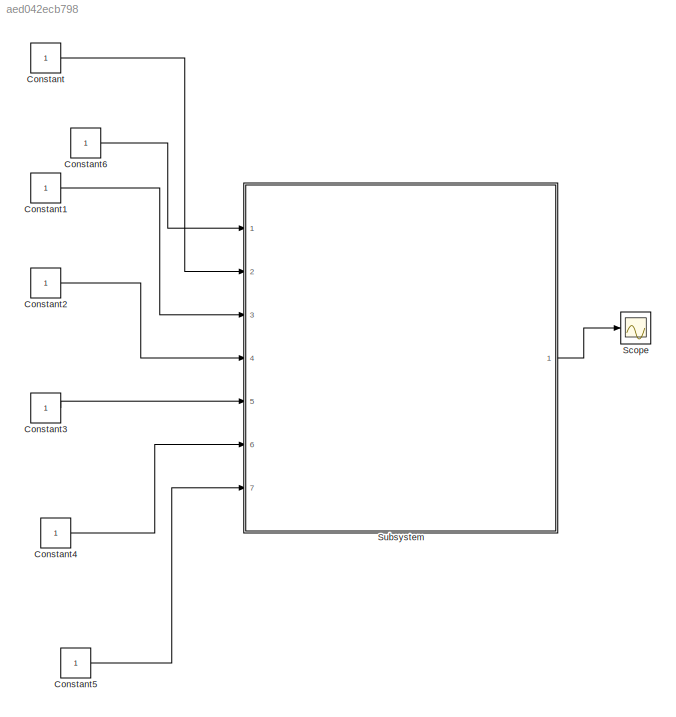
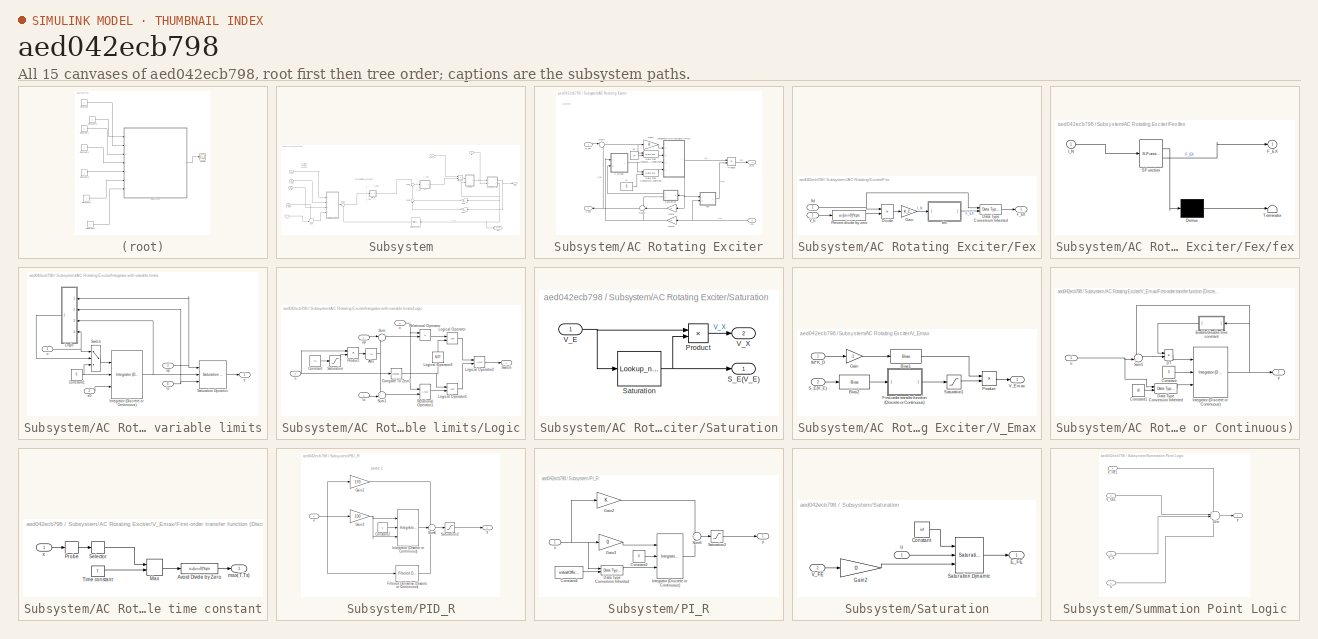
[diagram: thumbnail index - all 15 canvases of the model, root first then tree order]
MODEL slx_aed042ecb798
KIND model
CONFIG AbsTol = auto
CONFIG EnableMultiTasking = off
CONFIG FixedStep = auto
CONFIG MaxStep = auto
CONFIG MinStep = auto
CONFIG RelTol = 1e-3
CONFIG SampleTimeConstraint = Unconstrained
CONFIG SolverName = VariableStepAuto
CONFIG StartTime = 0.0
CONFIG StopTime = 1
BLOCK [Constant] Constant
BLOCK [Constant] Constant1
BLOCK [Constant] Constant2
BLOCK [Constant] Constant3
BLOCK [Constant] Constant4
BLOCK [Constant] Constant5
BLOCK [Constant] Constant6
BLOCK [Scope] Scope
  Floating = off
  NumInputPorts = 1
  Ports = [1]
  ScopeSpecificationString = Simulink.scopes.TimeScopeBlockCfg('CurrentConfiguration', extmgr.ConfigurationSet(extmgr.Configuration('Core','General UI',true),extmgr.Configuration('Core','Source UI',true),extmgr.Configuration('Sources','WiredSimulink',true),extmgr.Configuration('Visuals','Time Domain',true),extmgr.Configuration('Tools','Plot Navigation',true),extmgr.Configuration('Tools','Measurements',true,'Version','2021b'))...<+19ch>
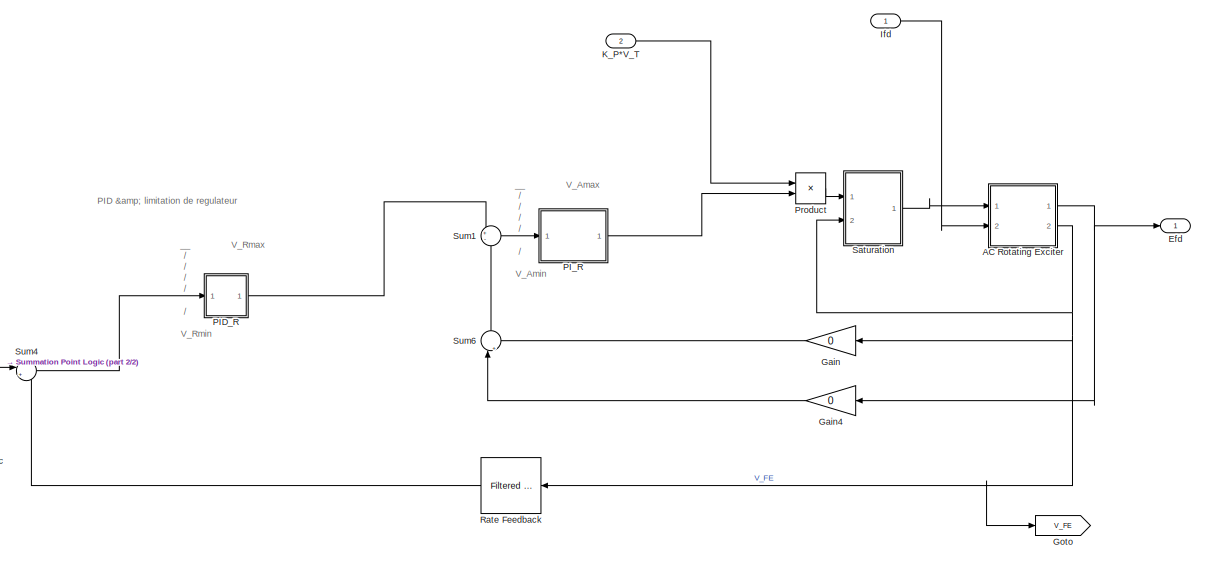
[diagram: Subsystem - part 1/2, most of the canvas]
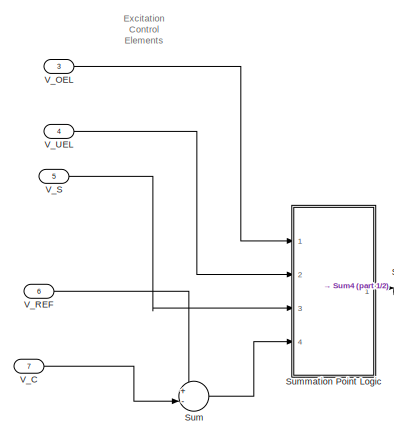
[diagram: Subsystem - part 2/2, left side, full height]
BLOCK [SubSystem] Subsystem
  Ports = [7, 1]
  RequestExecContextInheritance = off
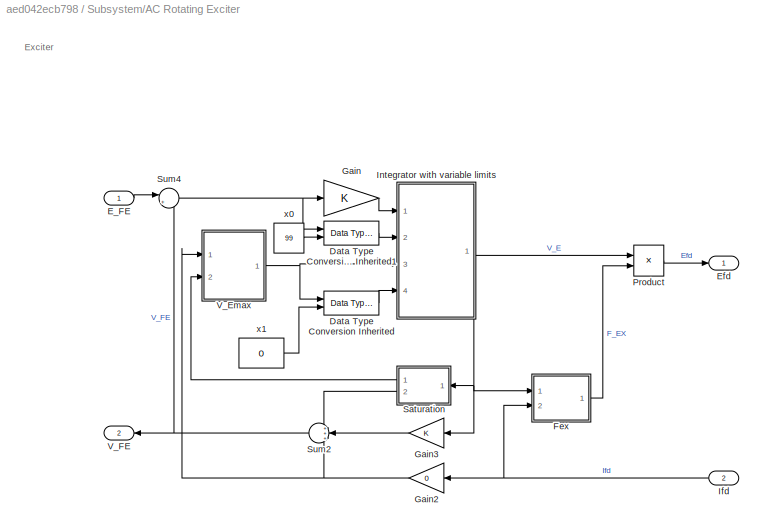
BLOCK [SubSystem] Subsystem/AC Rotating Exciter
  Ports = [2, 2]
  RequestExecContextInheritance = off
BLOCK [Reference] Subsystem/AC Rotating Exciter/Data Type Conversion Inherited  REF=simulink/Signal
Attributes/Data Type
Conversion
Inherited
  Ports = [2, 1]
  SourceBlock = simulink/Signal\nAttributes/Data Type\nConversion\nInherited
  SourceProductBaseCode = SL
  SourceType = Conversion Inherited
BLOCK [Reference] Subsystem/AC Rotating Exciter/Data Type Conversion Inherited1  REF=simulink/Signal
Attributes/Data Type
Conversion
Inherited
  Ports = [2, 1]
  SourceBlock = simulink/Signal\nAttributes/Data Type\nConversion\nInherited
  SourceProductBaseCode = SL
  SourceType = Conversion Inherited
BLOCK [Inport] Subsystem/AC Rotating Exciter/E_FE
BLOCK [Outport] Subsystem/AC Rotating Exciter/Efd
  VectorParamsAs1DForOutWhenUnconnected = off
BLOCK [SubSystem] Subsystem/AC Rotating Exciter/Fex
  Ports = [2, 1]
  RequestExecContextInheritance = off
BLOCK [Reference] Subsystem/AC Rotating Exciter/Fex/Data Type Conversion Inherited  REF=simulink/Signal
Attributes/Data Type
Conversion
Inherited
  Ports = [2, 1]
  SourceBlock = simulink/Signal\nAttributes/Data Type\nConversion\nInherited
  SourceProductBaseCode = SL
  SourceType = Conversion Inherited
BLOCK [Product] Subsystem/AC Rotating Exciter/Fex/Divide
  Inputs = */
  Ports = [2, 1]
BLOCK [Outport] Subsystem/AC Rotating Exciter/Fex/F_EX
  VectorParamsAs1DForOutWhenUnconnected = off
BLOCK [Gain] Subsystem/AC Rotating Exciter/Fex/Gain
  Gain = K_C
  OutDataTypeStr = double
BLOCK [Inport] Subsystem/AC Rotating Exciter/Fex/Ifd
  NameLocation = top
  Port = 2
BLOCK [Fcn] Subsystem/AC Rotating Exciter/Fex/Prevent divide by zero
  Expr = u+(u==0)*eps
BLOCK [Inport] Subsystem/AC Rotating Exciter/Fex/V_E
BLOCK [SubSystem] Subsystem/AC Rotating Exciter/Fex/fex
  ErrorFcn = Stateflow.Translate.translate
  PermitHierarchicalResolution = ExplicitOnly
  Ports = [1, 1]
  RequestExecContextInheritance = off
  SFBlockType = MATLAB Function
  TreatAsAtomicUnit = on
BLOCK [Demux] Subsystem/AC Rotating Exciter/Fex/fex/ Demux 
  Outputs = 1
  Ports = [1, 1]
BLOCK [S-Function] Subsystem/AC Rotating Exciter/Fex/fex/ SFunction 
  EnableBusSupport = on
  FunctionName = sf_sfun
  PortCounts = [1 2]
  Ports = [1, 2]
  SFcnIsStateOwnerBlock = off
  SFunctionDeploymentMode = off
  Tag = Stateflow S-Function 5
BLOCK [Terminator] Subsystem/AC Rotating Exciter/Fex/fex/ Terminator 
BLOCK [Outport] Subsystem/AC Rotating Exciter/Fex/fex/F_EX
  VectorParamsAs1DForOutWhenUnconnected = off
BLOCK [Inport] Subsystem/AC Rotating Exciter/Fex/fex/I_N
BLOCK [Gain] Subsystem/AC Rotating Exciter/Gain
  OutDataTypeStr = Inherit: Same as input
  ParamDataTypeStr = Inherit: Same as input
  SaturateOnIntegerOverflow = on
BLOCK [Gain] Subsystem/AC Rotating Exciter/Gain2
  Gain = 0
  OutDataTypeStr = Inherit: Same as input
  ParamDataTypeStr = Inherit: Same as input
  SaturateOnIntegerOverflow = on
BLOCK [Gain] Subsystem/AC Rotating Exciter/Gain3
  OutDataTypeStr = Inherit: Same as input
  ParamDataTypeStr = Inherit: Same as input
  SaturateOnIntegerOverflow = on
BLOCK [Inport] Subsystem/AC Rotating Exciter/Ifd
  Port = 2
BLOCK [SubSystem] Subsystem/AC Rotating Exciter/Integrator with variable limits
  Ports = [4, 1]
  RequestExecContextInheritance = off
BLOCK [Constant] Subsystem/AC Rotating Exciter/Integrator with variable limits/Constant1
  Value = 0
BLOCK [Reference] Subsystem/AC Rotating Exciter/Integrator with variable limits/Integrator (Discrete or Continuous)  REF=eeGeneralControl/Integrator
(Discrete or Continuous)
  Ports = [3, 1]
  SourceBlock = eeGeneralControl/Integrator\n(Discrete or Continuous)
  SourceProductBaseCode = PS
  SourceType = Integrator (Discrete or Continuous)
BLOCK [SubSystem] Subsystem/AC Rotating Exciter/Integrator with variable limits/Logic
  Ports = [4, 1]
  RequestExecContextInheritance = off
BLOCK [Abs] Subsystem/AC Rotating Exciter/Integrator with variable limits/Logic/Abs
  SaturateOnIntegerOverflow = off
BLOCK [Reference] Subsystem/AC Rotating Exciter/Integrator with variable limits/Logic/Compare To Zero1  REF=simulink/Logic and Bit
Operations/Compare
To Zero
  Ports = [1, 1]
  SourceBlock = simulink/Logic and Bit\nOperations/Compare\nTo Zero
  SourceProductBaseCode = SL
  SourceType = Compare To Zero
BLOCK [Constant] Subsystem/AC Rotating Exciter/Integrator with variable limits/Logic/Constant
  Value = Ts
BLOCK [Logic] Subsystem/AC Rotating Exciter/Integrator with variable limits/Logic/Logical Operator
  AllPortsSameDT = off
  Operator = OR
  OutDataTypeStr = boolean
  Ports = [2, 1]
BLOCK [Logic] Subsystem/AC Rotating Exciter/Integrator with variable limits/Logic/Logical Operator1
  AllPortsSameDT = off
  Operator = OR
  OutDataTypeStr = boolean
  Ports = [2, 1]
BLOCK [Logic] Subsystem/AC Rotating Exciter/Integrator with variable limits/Logic/Logical Operator2
  AllPortsSameDT = off
  OutDataTypeStr = boolean
  Ports = [2, 1]
BLOCK [Logic] Subsystem/AC Rotating Exciter/Integrator with variable limits/Logic/Logical Operator3
  AllPortsSameDT = off
  Operator = NOT
  OutDataTypeStr = boolean
  Ports = [1, 1]
BLOCK [Product] Subsystem/AC Rotating Exciter/Integrator with variable limits/Logic/Product
  OutDataTypeStr = Inherit: Same as first input
  Ports = [2, 1]
BLOCK [RelationalOperator] Subsystem/AC Rotating Exciter/Integrator with variable limits/Logic/Relational Operator
  InputSameDT = off
  Operator = <=
  OutDataTypeStr = boolean
  Ports = [2, 1]
BLOCK [RelationalOperator] Subsystem/AC Rotating Exciter/Integrator with variable limits/Logic/Relational Operator1
  InputSameDT = off
  OutDataTypeStr = boolean
  Ports = [2, 1]
BLOCK [Saturate] Subsystem/AC Rotating Exciter/Integrator with variable limits/Logic/Saturation
  LowerLimit = 0
  UpperLimit = inf
BLOCK [Sum] Subsystem/AC Rotating Exciter/Integrator with variable limits/Logic/Sum
  Inputs = |+-
  Ports = [2, 1]
BLOCK [Sum] Subsystem/AC Rotating Exciter/Integrator with variable limits/Logic/Sum1
  Inputs = ++|
  Ports = [2, 1]
BLOCK [Outport] Subsystem/AC Rotating Exciter/Integrator with variable limits/Logic/Switch
BLOCK [Inport] Subsystem/AC Rotating Exciter/Integrator with variable limits/Logic/lo
  Port = 2
BLOCK [Inport] Subsystem/AC Rotating Exciter/Integrator with variable limits/Logic/u
  Port = 4
BLOCK [Inport] Subsystem/AC Rotating Exciter/Integrator with variable limits/Logic/up
BLOCK [Inport] Subsystem/AC Rotating Exciter/Integrator with variable limits/Logic/x
  Port = 3
BLOCK [Reference] Subsystem/AC Rotating Exciter/Integrator with variable limits/Saturation Dynamic  REF=simulink/Discontinuities/Saturation
Dynamic
  Ports = [3, 1]
  SourceBlock = simulink/Discontinuities/Saturation\nDynamic
  SourceProductBaseCode = SL
  SourceType = Saturation Dynamic
BLOCK [Switch] Subsystem/AC Rotating Exciter/Integrator with variable limits/Switch
  Criteria = u2 > Threshold
  InputSameDT = off
  OutDataTypeStr = Inherit: Same as first input
  SaturateOnIntegerOverflow = off
BLOCK [Inport] Subsystem/AC Rotating Exciter/Integrator with variable limits/lo
  Port = 4
BLOCK [Inport] Subsystem/AC Rotating Exciter/Integrator with variable limits/u
BLOCK [Inport] Subsystem/AC Rotating Exciter/Integrator with variable limits/up
  Port = 3
BLOCK [Inport] Subsystem/AC Rotating Exciter/Integrator with variable limits/x0
  Port = 2
BLOCK [Outport] Subsystem/AC Rotating Exciter/Integrator with variable limits/y
BLOCK [Product] Subsystem/AC Rotating Exciter/Product
  OutDataTypeStr = Inherit: Same as first input
  Ports = [2, 1]
BLOCK [SubSystem] Subsystem/AC Rotating Exciter/Saturation
  Ports = [1, 2]
  RequestExecContextInheritance = off
BLOCK [Product] Subsystem/AC Rotating Exciter/Saturation/Product
  InputSameDT = on
  OutDataTypeStr = Inherit: Same as first input
  Ports = [2, 1]
  RndMeth = Zero
  SaturateOnIntegerOverflow = on
BLOCK [Outport] Subsystem/AC Rotating Exciter/Saturation/S_E(V_E)
  VectorParamsAs1DForOutWhenUnconnected = off
BLOCK [Lookup_n-D] Subsystem/AC Rotating Exciter/Saturation/Saturation
  BreakpointsForDimension1 = [0 E_2 E_1]
  InputPortMap = u0
  InternalRulePriority = Speed
  NumberOfTableDimensions = 1
  Ports = [1, 1]
  RndMeth = Simplest
  Table = [0 S_E_E2 S_E_E1]
BLOCK [Inport] Subsystem/AC Rotating Exciter/Saturation/V_E
BLOCK [Outport] Subsystem/AC Rotating Exciter/Saturation/V_X
  Port = 2
  VectorParamsAs1DForOutWhenUnconnected = off
BLOCK [Sum] Subsystem/AC Rotating Exciter/Sum2
  InputSameDT = on
  Inputs = +++
  NameLocation = top
  OutDataTypeStr = Inherit: Same as first input
  Ports = [3, 1]
  SaturateOnIntegerOverflow = on
BLOCK [Sum] Subsystem/AC Rotating Exciter/Sum4
  InputSameDT = on
  Inputs = |+-
  OutDataTypeStr = Inherit: Same as first input
  Ports = [2, 1]
  SaturateOnIntegerOverflow = on
BLOCK [SubSystem] Subsystem/AC Rotating Exciter/V_Emax
  Ports = [2, 1]
  RequestExecContextInheritance = off
BLOCK [Bias] Subsystem/AC Rotating Exciter/V_Emax/Bias1
  Bias = 99
  SaturateOnIntegerOverflow = off
BLOCK [Bias] Subsystem/AC Rotating Exciter/V_Emax/Bias2
  Bias = 1
  SaturateOnIntegerOverflow = off
BLOCK [SubSystem] Subsystem/AC Rotating Exciter/V_Emax/First-order transfer function (Discrete or Continuous)
  Ports = [1, 1]
  RequestExecContextInheritance = off
BLOCK [Product] Subsystem/AC Rotating Exciter/V_Emax/First-order transfer function (Discrete or Continuous)/1//T
  Inputs = /*
  Ports = [2, 1]
BLOCK [Constant] Subsystem/AC Rotating Exciter/V_Emax/First-order transfer function (Discrete or Continuous)/Constant
  Value = 0
BLOCK [Constant] Subsystem/AC Rotating Exciter/V_Emax/First-order transfer function (Discrete or Continuous)/Constant1
  Value = x0
BLOCK [Reference] Subsystem/AC Rotating Exciter/V_Emax/First-order transfer function (Discrete or Continuous)/Data Type Conversion Inherited  REF=simulink/Signal
Attributes/Data Type
Conversion
Inherited
  Ports = [2, 1]
  SourceBlock = simulink/Signal\nAttributes/Data Type\nConversion\nInherited
  SourceProductBaseCode = SL
  SourceType = Conversion Inherited
BLOCK [SubSystem] Subsystem/AC Rotating Exciter/V_Emax/First-order transfer function (Discrete or Continuous)/Enable//disable time constant
  Ports = [1, 1]
  RequestExecContextInheritance = off
BLOCK [Fcn] Subsystem/AC Rotating Exciter/V_Emax/First-order transfer function (Discrete or Continuous)/Enable//disable time constant/Avoid Divide by Zero
  Expr = u+(u==0)*eps
BLOCK [MinMax] Subsystem/AC Rotating Exciter/V_Emax/First-order transfer function (Discrete or Continuous)/Enable//disable time constant/Max
  Function = max
  Inputs = 2
  OutDataTypeStr = Inherit: Same as first input
  Ports = [2, 1]
BLOCK [Probe] Subsystem/AC Rotating Exciter/V_Emax/First-order transfer function (Discrete or Continuous)/Enable//disable time constant/Probe
  Ports = [1, 1]
  ProbeComplexSignal = off
  ProbeSampleTimeDataType = Same as input
  ProbeWidth = off
BLOCK [Selector] Subsystem/AC Rotating Exciter/V_Emax/First-order transfer function (Discrete or Continuous)/Enable//disable time constant/Selector
  IndexOptions = Index vector (dialog)
  Indices = 1
  InputPortWidth = 2
  OutputSizes = 1
  Ports = [1, 1]
BLOCK [Constant] Subsystem/AC Rotating Exciter/V_Emax/First-order transfer function (Discrete or Continuous)/Enable//disable time constant/Time constant
  SampleTime = Ts
  Value = T
BLOCK [Outport] Subsystem/AC Rotating Exciter/V_Emax/First-order transfer function (Discrete or Continuous)/Enable//disable time constant/max(T,Ts)
  VectorParamsAs1DForOutWhenUnconnected = off
BLOCK [Inport] Subsystem/AC Rotating Exciter/V_Emax/First-order transfer function (Discrete or Continuous)/Enable//disable time constant/x
BLOCK [Reference] Subsystem/AC Rotating Exciter/V_Emax/First-order transfer function (Discrete or Continuous)/Integrator (Discrete or Continuous)  REF=eeGeneralControl/Integrator
(Discrete or Continuous)
  Ports = [3, 1]
  SourceBlock = eeGeneralControl/Integrator\n(Discrete or Continuous)
  SourceProductBaseCode = PS
  SourceType = Integrator (Discrete or Continuous)
BLOCK [Sum] Subsystem/AC Rotating Exciter/V_Emax/First-order transfer function (Discrete or Continuous)/Sum1
  Inputs = -+|
  Ports = [2, 1]
BLOCK [Inport] Subsystem/AC Rotating Exciter/V_Emax/First-order transfer function (Discrete or Continuous)/u
BLOCK [Outport] Subsystem/AC Rotating Exciter/V_Emax/First-order transfer function (Discrete or Continuous)/y
  VectorParamsAs1DForOutWhenUnconnected = off
BLOCK [Gain] Subsystem/AC Rotating Exciter/V_Emax/Gain
  Gain = -1
BLOCK [Inport] Subsystem/AC Rotating Exciter/V_Emax/Ifd*K_D
BLOCK [Product] Subsystem/AC Rotating Exciter/V_Emax/Product
  Inputs = */
  Ports = [2, 1]
BLOCK [Inport] Subsystem/AC Rotating Exciter/V_Emax/S_E(V_E)
  Port = 2
BLOCK [Saturate] Subsystem/AC Rotating Exciter/V_Emax/Saturation1
  LowerLimit = eps
  UpperLimit = inf
BLOCK [Outport] Subsystem/AC Rotating Exciter/V_Emax/V_Emax
BLOCK [Outport] Subsystem/AC Rotating Exciter/V_FE
  Port = 2
  VectorParamsAs1DForOutWhenUnconnected = off
BLOCK [Constant] Subsystem/AC Rotating Exciter/x0
  Value = 99
BLOCK [Constant] Subsystem/AC Rotating Exciter/x1
  Value = 0
BLOCK [Outport] Subsystem/Efd
BLOCK [Gain] Subsystem/Gain
  Gain = 0
BLOCK [Gain] Subsystem/Gain4
  Gain = 0
BLOCK [Goto] Subsystem/Goto
  GotoTag = V_FE
BLOCK [Inport] Subsystem/Ifd
BLOCK [Inport] Subsystem/K_P*V_T
  Port = 2
BLOCK [SubSystem] Subsystem/PID_R
  Ports = [1, 1]
  RequestExecContextInheritance = off
BLOCK [Constant] Subsystem/PID_R/Constant2
  Value = 0
BLOCK [Reference] Subsystem/PID_R/Filtered Derivative (Discrete or Continuous)  REF=eeGeneralControl/Filtered Derivative
(Discrete or Continuous)
  Ports = [1, 1]
  SourceBlock = eeGeneralControl/Filtered Derivative\n(Discrete or Continuous)
  SourceProductBaseCode = PS
  SourceType = Filtered Derivative (Discrete or Continuous)
BLOCK [Gain] Subsystem/PID_R/Gain2
  Gain = 170
BLOCK [Gain] Subsystem/PID_R/Gain3
  Gain = 130
BLOCK [Reference] Subsystem/PID_R/Integrator (Discrete or Continuous)  REF=eeGeneralControl/Integrator
(Discrete or Continuous)
  Ports = [3, 1]
  SourceBlock = eeGeneralControl/Integrator\n(Discrete or Continuous)
  SourceProductBaseCode = PS
  SourceType = Integrator (Discrete or Continuous)
BLOCK [Saturate] Subsystem/PID_R/Saturation2
  LowerLimit = 0
  UpperLimit = 10
BLOCK [Sum] Subsystem/PID_R/Sum6
  Inputs = +++
  Ports = [3, 1]
BLOCK [Inport] Subsystem/PID_R/u
BLOCK [Outport] Subsystem/PID_R/y
BLOCK [SubSystem] Subsystem/PI_R
  Ports = [1, 1]
  RequestExecContextInheritance = off
BLOCK [Constant] Subsystem/PI_R/Constant2
  Value = 0
BLOCK [Constant] Subsystem/PI_R/Constant4
  Commented = on
  Value = initialOffset2
BLOCK [Reference] Subsystem/PI_R/Data Type Conversion Inherited  REF=simulink/Signal
Attributes/Data Type
Conversion
Inherited
  Ports = [2, 1]
  SourceBlock = simulink/Signal\nAttributes/Data Type\nConversion\nInherited
  SourceProductBaseCode = SL
  SourceType = Conversion Inherited
BLOCK [Gain] Subsystem/PI_R/Gain2
BLOCK [Gain] Subsystem/PI_R/Gain3
  Gain = 0
BLOCK [Reference] Subsystem/PI_R/Integrator (Discrete or Continuous)  REF=eeGeneralControl/Integrator
(Discrete or Continuous)
  Ports = [3, 1]
  SourceBlock = eeGeneralControl/Integrator\n(Discrete or Continuous)
  SourceProductBaseCode = PS
  SourceType = Integrator (Discrete or Continuous)
BLOCK [Saturate] Subsystem/PI_R/Saturation2
  LowerLimit = 0
  UpperLimit = 10
BLOCK [Sum] Subsystem/PI_R/Sum6
  Ports = [2, 1]
BLOCK [Inport] Subsystem/PI_R/u
BLOCK [Outport] Subsystem/PI_R/y
BLOCK [Product] Subsystem/Product
  Ports = [2, 1]
BLOCK [Reference] Subsystem/Rate Feedback  REF=eeGeneralControl/Filtered Derivative
(Discrete or Continuous)
  Ports = [1, 1]
  SourceBlock = eeGeneralControl/Filtered Derivative\n(Discrete or Continuous)
  SourceProductBaseCode = PS
  SourceType = Filtered Derivative (Discrete or Continuous)
BLOCK [SubSystem] Subsystem/Saturation
  Ports = [2, 1]
  RequestExecContextInheritance = off
BLOCK [Constant] Subsystem/Saturation/Constant
  Value = inf
BLOCK [Outport] Subsystem/Saturation/E_FE
BLOCK [Gain] Subsystem/Saturation/Gain2
  Gain = 0
BLOCK [Reference] Subsystem/Saturation/Saturation Dynamic  REF=simulink/Discontinuities/Saturation
Dynamic
  Ports = [3, 1]
  SourceBlock = simulink/Discontinuities/Saturation\nDynamic
  SourceProductBaseCode = SL
  SourceType = Saturation Dynamic
BLOCK [Inport] Subsystem/Saturation/V_FE
  Port = 2
BLOCK [Inport] Subsystem/Saturation/u
BLOCK [Sum] Subsystem/Sum
  InputSameDT = on
  Inputs = +-|
  OutDataTypeStr = Inherit: Same as first input
  Ports = [2, 1]
  SaturateOnIntegerOverflow = on
BLOCK [Sum] Subsystem/Sum1
  InputSameDT = on
  Inputs = +-
  OutDataTypeStr = Inherit: Same as first input
  Ports = [2, 1]
  SaturateOnIntegerOverflow = on
BLOCK [Sum] Subsystem/Sum4
  InputSameDT = on
  Inputs = |+-
  OutDataTypeStr = Inherit: Same as first input
  Ports = [2, 1]
  SaturateOnIntegerOverflow = on
BLOCK [Sum] Subsystem/Sum6
  InputSameDT = on
  Inputs = |++
  OutDataTypeStr = Inherit: Same as first input
  Ports = [2, 1]
  SaturateOnIntegerOverflow = on
BLOCK [SubSystem] Subsystem/Summation Point Logic
  Ports = [4, 1]
  RequestExecContextInheritance = off
BLOCK [Sum] Subsystem/Summation Point Logic/Sum
  Inputs = ++++
  Ports = [4, 1]
BLOCK [Inport] Subsystem/Summation Point Logic/V_OEL
BLOCK [Inport] Subsystem/Summation Point Logic/V_S
  Port = 3
  SampleTime = Ts
BLOCK [Inport] Subsystem/Summation Point Logic/V_UEL
  Port = 2
BLOCK [Inport] Subsystem/Summation Point Logic/u
  Port = 4
BLOCK [Outport] Subsystem/Summation Point Logic/y
  VectorParamsAs1DForOutWhenUnconnected = off
BLOCK [Inport] Subsystem/V_C 
  Port = 7
BLOCK [Inport] Subsystem/V_OEL
  Port = 3
BLOCK [Inport] Subsystem/V_REF
  Port = 6
BLOCK [Inport] Subsystem/V_S
  Port = 5
BLOCK [Inport] Subsystem/V_UEL
  Port = 4
ANNOTATION Subsystem: __ / / / / / __/
ANNOTATION Subsystem: PID & limitation de regulateur
ANNOTATION Subsystem: Excitation Control Elements
ANNOTATION Subsystem: V_Amax
ANNOTATION Subsystem: V_Amin
ANNOTATION Subsystem: V_Rmax
ANNOTATION Subsystem: V_Rmin
ANNOTATION Subsystem/AC Rotating Exciter: Exciter
ANNOTATION Subsystem/PID_R: partie 1
LINE Constant1:1 -> Subsystem:3
LINE Constant2:1 -> Subsystem:4
LINE Constant3:1 -> Subsystem:5
LINE Constant4:1 -> Subsystem:6
LINE Constant5:1 -> Subsystem:7
LINE Constant6:1 -> Subsystem:1
LINE Constant:1 -> Subsystem:2
LINE Subsystem/AC Rotating Exciter/Data Type Conversion Inherited1:1 -> Subsystem/AC Rotating Exciter/Integrator with variable limits:2
LINE Subsystem/AC Rotating Exciter/Data Type Conversion Inherited:1 -> Subsystem/AC Rotating Exciter/Integrator with variable limits:4
LINE Subsystem/AC Rotating Exciter/E_FE:1 -> Subsystem/AC Rotating Exciter/Sum4:1
LINE Subsystem/AC Rotating Exciter/Fex/Data Type Conversion Inherited:1 -> Subsystem/AC Rotating Exciter/Fex/F_EX:1
LINE Subsystem/AC Rotating Exciter/Fex/Divide:1 -> Subsystem/AC Rotating Exciter/Fex/Gain:1
LINE Subsystem/AC Rotating Exciter/Fex/Gain:1 -> Subsystem/AC Rotating Exciter/Fex/fex:1
NET Subsystem/AC Rotating Exciter/Fex/Ifd:1 -> Subsystem/AC Rotating Exciter/Fex/Data Type Conversion Inherited:1, Subsystem/AC Rotating Exciter/Fex/Divide:1
LINE Subsystem/AC Rotating Exciter/Fex/Prevent divide by zero:1 -> Subsystem/AC Rotating Exciter/Fex/Divide:2
LINE Subsystem/AC Rotating Exciter/Fex/V_E:1 -> Subsystem/AC Rotating Exciter/Fex/Prevent divide by zero:1
LINE Subsystem/AC Rotating Exciter/Fex/fex:1 -> Subsystem/AC Rotating Exciter/Fex/Data Type Conversion Inherited:2
LINE Subsystem/AC Rotating Exciter/Fex:1 -> Subsystem/AC Rotating Exciter/Product:2
NET Subsystem/AC Rotating Exciter/Gain2:1 -> Subsystem/AC Rotating Exciter/Sum2:3, Subsystem/AC Rotating Exciter/V_Emax:1
LINE Subsystem/AC Rotating Exciter/Gain3:1 -> Subsystem/AC Rotating Exciter/Sum2:2
LINE Subsystem/AC Rotating Exciter/Gain:1 -> Subsystem/AC Rotating Exciter/Integrator with variable limits:1
NET Subsystem/AC Rotating Exciter/Ifd:1 -> Subsystem/AC Rotating Exciter/Fex:2, Subsystem/AC Rotating Exciter/Gain2:1
NET Subsystem/AC Rotating Exciter/Integrator with variable limits/Constant1:1 -> Subsystem/AC Rotating Exciter/Integrator with variable limits/Integrator (Discrete or Continuous):2, Subsystem/AC Rotating Exciter/Integrator with variable limits/Switch:3
NET Subsystem/AC Rotating Exciter/Integrator with variable limits/Integrator (Discrete or Continuous):1 -> Subsystem/AC Rotating Exciter/Integrator with variable limits/Logic:3, Subsystem/AC Rotating Exciter/Integrator with variable limits/Saturation Dynamic:2
NET Subsystem/AC Rotating Exciter/Integrator with variable limits/Logic/Abs:1 -> Subsystem/AC Rotating Exciter/Integrator with variable limits/Logic/Sum1:1, Subsystem/AC Rotating Exciter/Integrator with variable limits/Logic/Sum:2
NET Subsystem/AC Rotating Exciter/Integrator with variable limits/Logic/Compare To Zero1:1 -> Subsystem/AC Rotating Exciter/Integrator with variable limits/Logic/Logical Operator1:1, Subsystem/AC Rotating Exciter/Integrator with variable limits/Logic/Logical Operator3:1
LINE Subsystem/AC Rotating Exciter/Integrator with variable limits/Logic/Constant:1 -> Subsystem/AC Rotating Exciter/Integrator with variable limits/Logic/Saturation:1
LINE Subsystem/AC Rotating Exciter/Integrator with variable limits/Logic/Logical Operator1:1 -> Subsystem/AC Rotating Exciter/Integrator with variable limits/Logic/Logical Operator2:2
LINE Subsystem/AC Rotating Exciter/Integrator with variable limits/Logic/Logical Operator2:1 -> Subsystem/AC Rotating Exciter/Integrator with variable limits/Logic/Switch:1
LINE Subsystem/AC Rotating Exciter/Integrator with variable limits/Logic/Logical Operator3:1 -> Subsystem/AC Rotating Exciter/Integrator with variable limits/Logic/Logical Operator:2
LINE Subsystem/AC Rotating Exciter/Integrator with variable limits/Logic/Logical Operator:1 -> Subsystem/AC Rotating Exciter/Integrator with variable limits/Logic/Logical Operator2:1
LINE Subsystem/AC Rotating Exciter/Integrator with variable limits/Logic/Product:1 -> Subsystem/AC Rotating Exciter/Integrator with variable limits/Logic/Abs:1
LINE Subsystem/AC Rotating Exciter/Integrator with variable limits/Logic/Relational Operator1:1 -> Subsystem/AC Rotating Exciter/Integrator with variable limits/Logic/Logical Operator1:2
LINE Subsystem/AC Rotating Exciter/Integrator with variable limits/Logic/Relational Operator:1 -> Subsystem/AC Rotating Exciter/Integrator with variable limits/Logic/Logical Operator:1
LINE Subsystem/AC Rotating Exciter/Integrator with variable limits/Logic/Saturation:1 -> Subsystem/AC Rotating Exciter/Integrator with variable limits/Logic/Product:2
LINE Subsystem/AC Rotating Exciter/Integrator with variable limits/Logic/Sum1:1 -> Subsystem/AC Rotating Exciter/Integrator with variable limits/Logic/Relational Operator1:2
LINE Subsystem/AC Rotating Exciter/Integrator with variable limits/Logic/Sum:1 -> Subsystem/AC Rotating Exciter/Integrator with variable limits/Logic/Relational Operator:2
LINE Subsystem/AC Rotating Exciter/Integrator with variable limits/Logic/lo:1 -> Subsystem/AC Rotating Exciter/Integrator with variable limits/Logic/Sum1:2
NET Subsystem/AC Rotating Exciter/Integrator with variable limits/Logic/u:1 -> Subsystem/AC Rotating Exciter/Integrator with variable limits/Logic/Compare To Zero1:1, Subsystem/AC Rotating Exciter/Integrator with variable limits/Logic/Product:1
LINE Subsystem/AC Rotating Exciter/Integrator with variable limits/Logic/up:1 -> Subsystem/AC Rotating Exciter/Integrator with variable limits/Logic/Sum:1
NET Subsystem/AC Rotating Exciter/Integrator with variable limits/Logic/x:1 -> Subsystem/AC Rotating Exciter/Integrator with variable limits/Logic/Relational Operator1:1, Subsystem/AC Rotating Exciter/Integrator with variable limits/Logic/Relational Operator:1
LINE Subsystem/AC Rotating Exciter/Integrator with variable limits/Logic:1 -> Subsystem/AC Rotating Exciter/Integrator with variable limits/Switch:2
LINE Subsystem/AC Rotating Exciter/Integrator with variable limits/Saturation Dynamic:1 -> Subsystem/AC Rotating Exciter/Integrator with variable limits/y:1
LINE Subsystem/AC Rotating Exciter/Integrator with variable limits/Switch:1 -> Subsystem/AC Rotating Exciter/Integrator with variable limits/Integrator (Discrete or Continuous):1
NET Subsystem/AC Rotating Exciter/Integrator with variable limits/lo:1 -> Subsystem/AC Rotating Exciter/Integrator with variable limits/Logic:2, Subsystem/AC Rotating Exciter/Integrator with variable limits/Saturation Dynamic:3
NET Subsystem/AC Rotating Exciter/Integrator with variable limits/u:1 -> Subsystem/AC Rotating Exciter/Integrator with variable limits/Logic:4, Subsystem/AC Rotating Exciter/Integrator with variable limits/Switch:1
NET Subsystem/AC Rotating Exciter/Integrator with variable limits/up:1 -> Subsystem/AC Rotating Exciter/Integrator with variable limits/Logic:1, Subsystem/AC Rotating Exciter/Integrator with variable limits/Saturation Dynamic:1
LINE Subsystem/AC Rotating Exciter/Integrator with variable limits/x0:1 -> Subsystem/AC Rotating Exciter/Integrator with variable limits/Integrator (Discrete or Continuous):3
NET Subsystem/AC Rotating Exciter/Integrator with variable limits:1 -> Subsystem/AC Rotating Exciter/Fex:1, Subsystem/AC Rotating Exciter/Gain3:1, Subsystem/AC Rotating Exciter/Product:1, Subsystem/AC Rotating Exciter/Saturation:1
LINE Subsystem/AC Rotating Exciter/Product:1 -> Subsystem/AC Rotating Exciter/Efd:1
LINE Subsystem/AC Rotating Exciter/Saturation/Product:1 -> Subsystem/AC Rotating Exciter/Saturation/V_X:1
NET Subsystem/AC Rotating Exciter/Saturation/Saturation:1 -> Subsystem/AC Rotating Exciter/Saturation/Product:2, Subsystem/AC Rotating Exciter/Saturation/S_E(V_E):1
NET Subsystem/AC Rotating Exciter/Saturation/V_E:1 -> Subsystem/AC Rotating Exciter/Saturation/Product:1, Subsystem/AC Rotating Exciter/Saturation/Saturation:1
LINE Subsystem/AC Rotating Exciter/Saturation:1 -> Subsystem/AC Rotating Exciter/V_Emax:2
LINE Subsystem/AC Rotating Exciter/Saturation:2 -> Subsystem/AC Rotating Exciter/Sum2:1
NET Subsystem/AC Rotating Exciter/Sum2:1 -> Subsystem/AC Rotating Exciter/Sum4:2, Subsystem/AC Rotating Exciter/V_FE:1
NET Subsystem/AC Rotating Exciter/Sum4:1 -> Subsystem/AC Rotating Exciter/Data Type Conversion Inherited1:1, Subsystem/AC Rotating Exciter/Gain:1
LINE Subsystem/AC Rotating Exciter/V_Emax/Bias1:1 -> Subsystem/AC Rotating Exciter/V_Emax/Product:1
LINE Subsystem/AC Rotating Exciter/V_Emax/Bias2:1 -> Subsystem/AC Rotating Exciter/V_Emax/First-order transfer function (Discrete or Continuous):1
LINE Subsystem/AC Rotating Exciter/V_Emax/First-order transfer function (Discrete or Continuous):1 -> Subsystem/AC Rotating Exciter/V_Emax/Saturation1:1
LINE Subsystem/AC Rotating Exciter/V_Emax/Gain:1 -> Subsystem/AC Rotating Exciter/V_Emax/Bias1:1
LINE Subsystem/AC Rotating Exciter/V_Emax/Ifd*K_D:1 -> Subsystem/AC Rotating Exciter/V_Emax/Gain:1
LINE Subsystem/AC Rotating Exciter/V_Emax/Product:1 -> Subsystem/AC Rotating Exciter/V_Emax/V_Emax:1
LINE Subsystem/AC Rotating Exciter/V_Emax/S_E(V_E):1 -> Subsystem/AC Rotating Exciter/V_Emax/Bias2:1
LINE Subsystem/AC Rotating Exciter/V_Emax/Saturation1:1 -> Subsystem/AC Rotating Exciter/V_Emax/Product:2
NET Subsystem/AC Rotating Exciter/V_Emax:1 -> Subsystem/AC Rotating Exciter/Data Type Conversion Inherited:1, Subsystem/AC Rotating Exciter/Integrator with variable limits:3
LINE Subsystem/AC Rotating Exciter/x0:1 -> Subsystem/AC Rotating Exciter/Data Type Conversion Inherited1:2
LINE Subsystem/AC Rotating Exciter/x1:1 -> Subsystem/AC Rotating Exciter/Data Type Conversion Inherited:2
NET Subsystem/AC Rotating Exciter:1 -> Subsystem/Efd:1, Subsystem/Gain4:1
NET Subsystem/AC Rotating Exciter:2 -> Subsystem/Gain:1, Subsystem/Goto:1, Subsystem/Rate Feedback:1, Subsystem/Saturation:2
LINE Subsystem/Gain4:1 -> Subsystem/Sum6:1
LINE Subsystem/Gain:1 -> Subsystem/Sum6:2
LINE Subsystem/Ifd:1 -> Subsystem/AC Rotating Exciter:2
LINE Subsystem/K_P*V_T:1 -> Subsystem/Product:1
LINE Subsystem/PID_R/Constant2:1 -> Subsystem/PID_R/Integrator (Discrete or Continuous):2
LINE Subsystem/PID_R/Filtered Derivative (Discrete or Continuous):1 -> Subsystem/PID_R/Sum6:3
LINE Subsystem/PID_R/Gain2:1 -> Subsystem/PID_R/Sum6:1
NET Subsystem/PID_R/Gain3:1 -> Subsystem/PID_R/Integrator (Discrete or Continuous):1, Subsystem/PID_R/Integrator (Discrete or Continuous):3
LINE Subsystem/PID_R/Integrator (Discrete or Continuous):1 -> Subsystem/PID_R/Sum6:2
LINE Subsystem/PID_R/Saturation2:1 -> Subsystem/PID_R/y:1
LINE Subsystem/PID_R/Sum6:1 -> Subsystem/PID_R/Saturation2:1
NET Subsystem/PID_R/u:1 -> Subsystem/PID_R/Filtered Derivative (Discrete or Continuous):1, Subsystem/PID_R/Gain2:1, Subsystem/PID_R/Gain3:1
LINE Subsystem/PID_R:1 -> Subsystem/Sum1:1
LINE Subsystem/PI_R/Constant2:1 -> Subsystem/PI_R/Integrator (Discrete or Continuous):2
LINE Subsystem/PI_R/Constant4:1 -> Subsystem/PI_R/Data Type Conversion Inherited:2
LINE Subsystem/PI_R/Data Type Conversion Inherited:1 -> Subsystem/PI_R/Integrator (Discrete or Continuous):3
LINE Subsystem/PI_R/Gain2:1 -> Subsystem/PI_R/Sum6:1
LINE Subsystem/PI_R/Gain3:1 -> Subsystem/PI_R/Integrator (Discrete or Continuous):1
LINE Subsystem/PI_R/Integrator (Discrete or Continuous):1 -> Subsystem/PI_R/Sum6:2
LINE Subsystem/PI_R/Saturation2:1 -> Subsystem/PI_R/y:1
LINE Subsystem/PI_R/Sum6:1 -> Subsystem/PI_R/Saturation2:1
NET Subsystem/PI_R/u:1 -> Subsystem/PI_R/Data Type Conversion Inherited:1, Subsystem/PI_R/Gain2:1, Subsystem/PI_R/Gain3:1
LINE Subsystem/PI_R:1 -> Subsystem/Product:2
LINE Subsystem/Product:1 -> Subsystem/Saturation:1
LINE Subsystem/Rate Feedback:1 -> Subsystem/Sum4:2
LINE Subsystem/Saturation/Constant:1 -> Subsystem/Saturation/Saturation Dynamic:1
LINE Subsystem/Saturation/Gain2:1 -> Subsystem/Saturation/Saturation Dynamic:3
LINE Subsystem/Saturation/Saturation Dynamic:1 -> Subsystem/Saturation/E_FE:1
LINE Subsystem/Saturation/V_FE:1 -> Subsystem/Saturation/Gain2:1
LINE Subsystem/Saturation/u:1 -> Subsystem/Saturation/Saturation Dynamic:2
LINE Subsystem/Saturation:1 -> Subsystem/AC Rotating Exciter:1
LINE Subsystem/Sum1:1 -> Subsystem/PI_R:1
LINE Subsystem/Sum4:1 -> Subsystem/PID_R:1
LINE Subsystem/Sum6:1 -> Subsystem/Sum1:2
LINE Subsystem/Sum:1 -> Subsystem/Summation Point Logic:4
LINE Subsystem/Summation Point Logic/Sum:1 -> Subsystem/Summation Point Logic/y:1
LINE Subsystem/Summation Point Logic/V_OEL:1 -> Subsystem/Summation Point Logic/Sum:1
LINE Subsystem/Summation Point Logic/V_S:1 -> Subsystem/Summation Point Logic/Sum:3
LINE Subsystem/Summation Point Logic/V_UEL:1 -> Subsystem/Summation Point Logic/Sum:2
LINE Subsystem/Summation Point Logic/u:1 -> Subsystem/Summation Point Logic/Sum:4
LINE Subsystem/Summation Point Logic:1 -> Subsystem/Sum4:1
LINE Subsystem/V_C :1 -> Subsystem/Sum:2
LINE Subsystem/V_OEL:1 -> Subsystem/Summation Point Logic:1
LINE Subsystem/V_REF:1 -> Subsystem/Sum:1
LINE Subsystem/V_S:1 -> Subsystem/Summation Point Logic:3
LINE Subsystem/V_UEL:1 -> Subsystem/Summation Point Logic:2
LINE Subsystem:1 -> Scope:1
note: NET lines group one-source signal fan-out (src -> all destinations, sorted); 1:1 wires keep LINE
CHART Subsystem/AC Rotating
Exciter/Fex/fex states=1 transitions=1
  STATE_LABEL 'eML_blk_kernel()'
  STATE_LABEL 'SCRIPT:\nfunction F_EX = fex(I_N)\n% AVRFEX Rectifier regulation characteristic based on: IEEE Recommended\n% Practice for Excitation System Models for Power System Stability Studies,\n% IEEE Std 421.5-2006,Annex D, Rectifier Regulation\n\nF_EX = ee.control.sm.fex(I_N);\n\nend'
CHART  states=0 transitions=0
